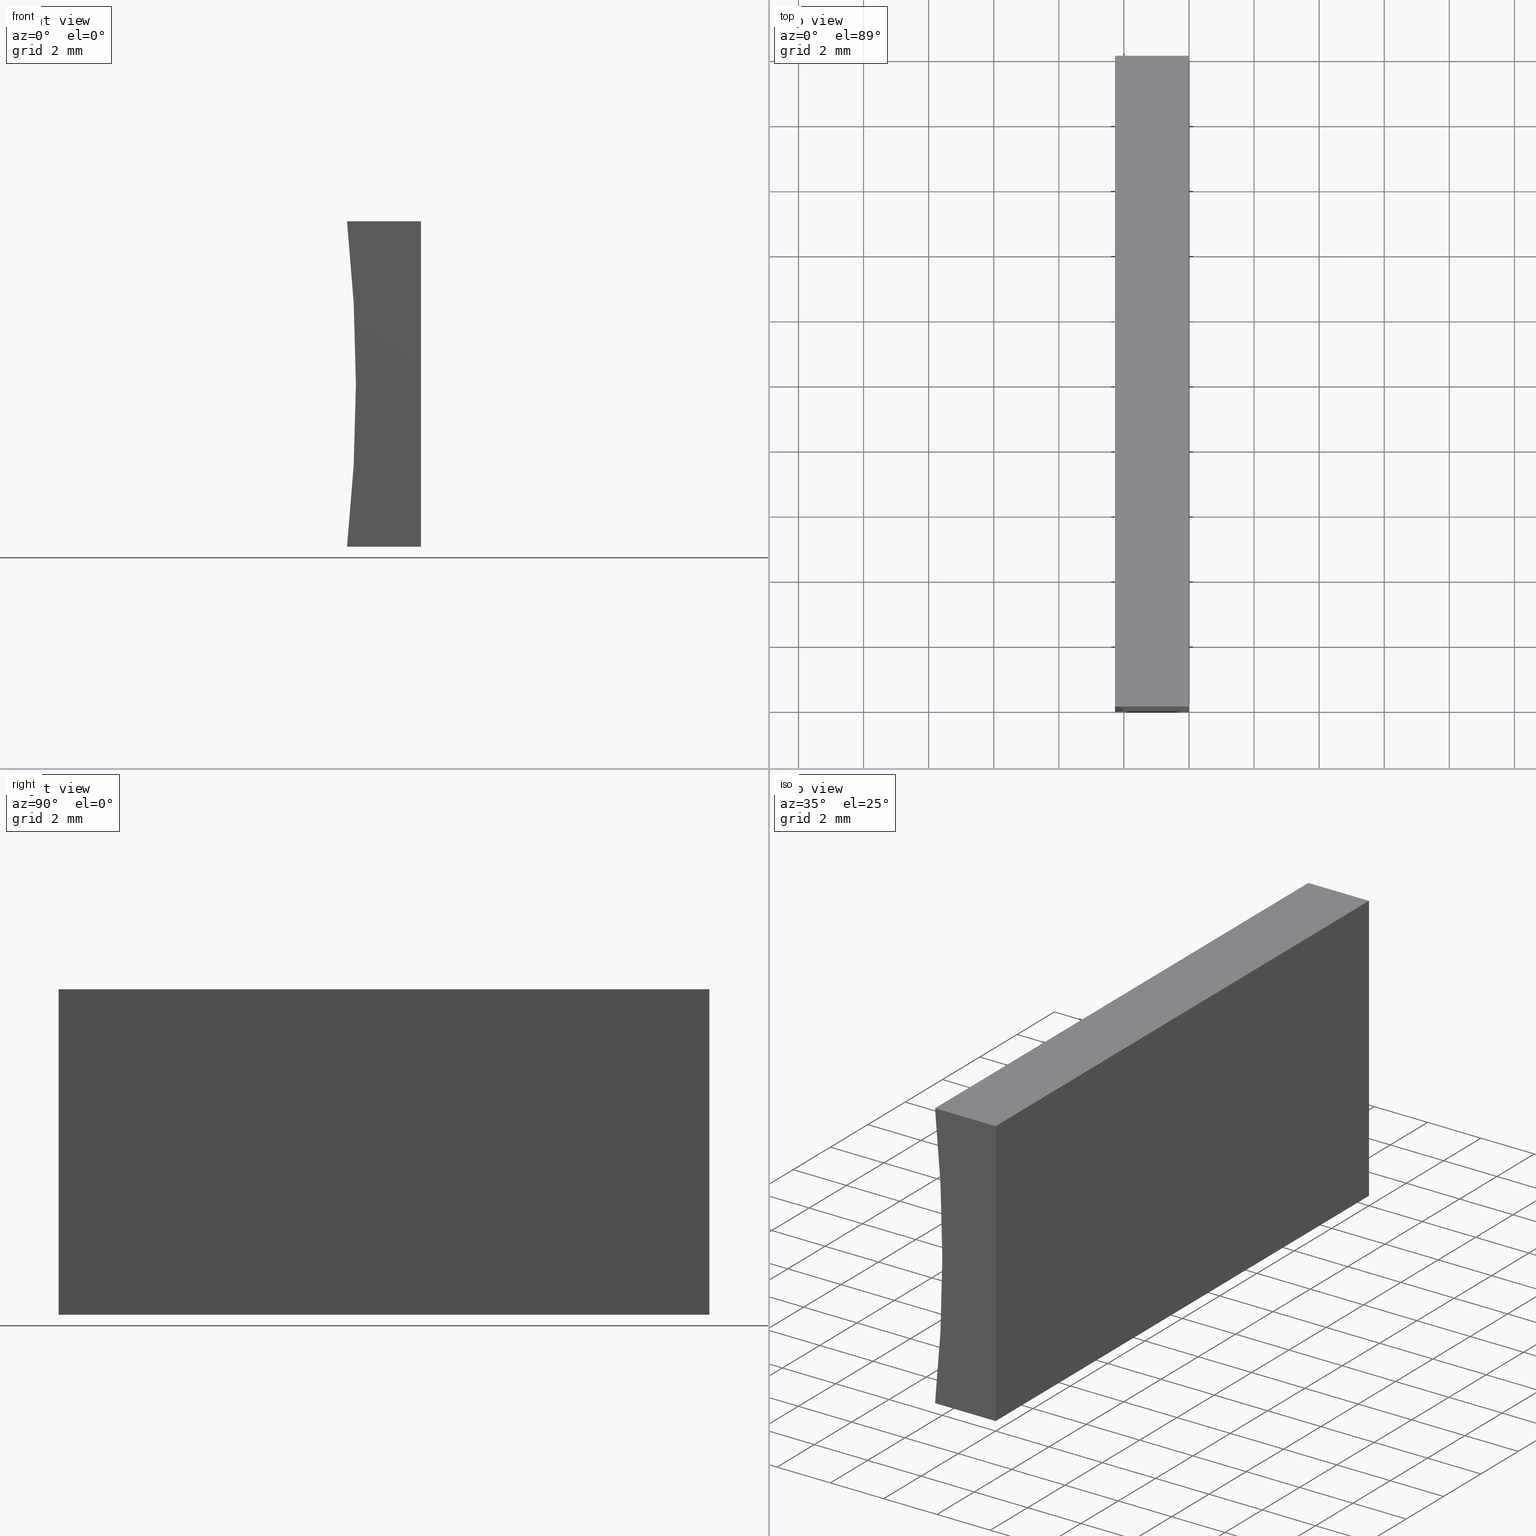
[diagram: canonical four-view strip — front | top / right | iso, engineering-drawing reading convention]
A machine part, canonical four-view strip (front | top / right | iso — engineering-drawing reading convention). The complete STEP part file that produces these views, byte-faithful:
ISO-10303-21;
HEADER;
FILE_DESCRIPTION (( 'STEP AP214' ),
    '1' );
FILE_NAME ('155481.STEP',
    '2019-07-03T07:50:52',
    ( 'user' ),
    ( '΢���й�' ),
    'SwSTEP 2.0',
    'SolidWorks 2016',
    '' );
FILE_SCHEMA (( 'AUTOMOTIVE_DESIGN' ));
ENDSEC;

DATA;
#1 = UNCERTAINTY_MEASURE_WITH_UNIT (LENGTH_MEASURE( 1.000000000000000100E-005 ), #62, 'distance_accuracy_value', 'NONE');
#2 = ADVANCED_FACE ( 'NONE', ( #198 ), #201, .F. ) ;
#3 = DIRECTION ( 'NONE',  ( 1.000000000000000000, -0.0000000000000000000, -7.630378568483683100E-016 ) ) ;
#4 = ORIENTED_EDGE ( 'NONE', *, *, #15, .F. ) ;
#5 = DIRECTION ( 'NONE',  ( 0.0000000000000000000, 1.000000000000000000, 0.0000000000000000000 ) ) ;
#6 = ORIENTED_EDGE ( 'NONE', *, *, #111, .T. ) ;
#7 = ORIENTED_EDGE ( 'NONE', *, *, #85, .T. ) ;
#8 = LINE ( 'NONE', #25, #126 ) ;
#9 = PLANE ( 'NONE',  #191 ) ;
#10 =( NAMED_UNIT ( * ) SI_UNIT ( $, .STERADIAN. ) SOLID_ANGLE_UNIT ( ) );
#11 = PRODUCT_DEFINITION_CONTEXT ( 'detailed design', #51, 'design' ) ;
#12 = EDGE_LOOP ( 'NONE', ( #178, #180, #164, #161 ) ) ;
#13 = EDGE_LOOP ( 'NONE', ( #75, #18, #4, #6 ) ) ;
#14 = ORIENTED_EDGE ( 'NONE', *, *, #199, .F. ) ;
#15 = EDGE_CURVE ( 'NONE', #24, #68, #47, .T. ) ;
#16 = LINE ( 'NONE', #120, #87 ) ;
#17 = DIRECTION ( 'NONE',  ( -1.000000000000000000, 0.0000000000000000000, -7.630378568483681200E-016 ) ) ;
#18 = ORIENTED_EDGE ( 'NONE', *, *, #148, .F. ) ;
#19 = DIRECTION ( 'NONE',  ( -7.630378568483682100E-016, 0.0000000000000000000, 1.000000000000000000 ) ) ;
#20 = SHAPE_DEFINITION_REPRESENTATION ( #182, #139 ) ;
#21 = DIRECTION ( 'NONE',  ( 0.0000000000000000000, 0.0000000000000000000, -1.000000000000000000 ) ) ;
#22 = CARTESIAN_POINT ( 'NONE',  ( -2.273443526304006900, 0.0000000000000000000, 10.00000000000000200 ) ) ;
#23 = VERTEX_POINT ( 'NONE', #82 ) ;
#24 = VERTEX_POINT ( 'NONE', #160 ) ;
#25 = CARTESIAN_POINT ( 'NONE',  ( 0.0000000000000000000, 0.0000000000000000000, 0.0000000000000000000 ) ) ;
#26 = LINE ( 'NONE', #165, #137 ) ;
#27 = PRODUCT_DEFINITION ( 'δ֪', '', #100, #11 ) ;
#28 = EDGE_LOOP ( 'NONE', ( #179, #153, #64, #110 ) ) ;
#29 = ORIENTED_EDGE ( 'NONE', *, *, #148, .T. ) ;
#30 = EDGE_CURVE ( 'NONE', #23, #24, #72, .T. ) ;
#31 = PRODUCT_CONTEXT ( 'NONE', #106, 'mechanical' ) ;
#32 = PLANE ( 'NONE',  #173 ) ;
#33 = EDGE_LOOP ( 'NONE', ( #7, #14, #171, #63 ) ) ;
#34 = STYLED_ITEM ( 'NONE', ( #115 ), #139 ) ;
#35 = VERTEX_POINT ( 'NONE', #117 ) ;
#36 = EDGE_CURVE ( 'NONE', #169, #23, #204, .T. ) ;
#37 = PRODUCT_RELATED_PRODUCT_CATEGORY ( 'part', '', ( #97 ) ) ;
#38 = DIRECTION ( 'NONE',  ( 1.000000000000000000, 0.0000000000000000000, 0.0000000000000000000 ) ) ;
#39 = AXIS2_PLACEMENT_3D ( 'NONE', #143, #88, #53 ) ;
#40 = APPLICATION_PROTOCOL_DEFINITION ( 'draft international standard', 'automotive_design', 1998, #51 ) ;
#41 = FACE_OUTER_BOUND ( 'NONE', #12, .T. ) ;
#42 = FACE_OUTER_BOUND ( 'NONE', #28, .T. ) ;
#43 = AXIS2_PLACEMENT_3D ( 'NONE', #155, #192, #46 ) ;
#44 = ORIENTED_EDGE ( 'NONE', *, *, #60, .F. ) ;
#45 = ORIENTED_EDGE ( 'NONE', *, *, #114, .F. ) ;
#46 = DIRECTION ( 'NONE',  ( 0.0000000000000000000, -0.0000000000000000000, 1.000000000000000000 ) ) ;
#47 = LINE ( 'NONE', #74, #202 ) ;
#48 = CIRCLE ( 'NONE', #39, 45.85000000000000100 ) ;
#49 = ORIENTED_EDGE ( 'NONE', *, *, #122, .T. ) ;
#50 = SURFACE_SIDE_STYLE ('',( #162 ) ) ;
#51 = APPLICATION_CONTEXT ( 'automotive_design' ) ;
#52 = AXIS2_PLACEMENT_3D ( 'NONE', #98, #167, #21 ) ;
#53 = DIRECTION ( 'NONE',  ( 0.0000000000000000000, 0.0000000000000000000, 1.000000000000000000 ) ) ;
#54 = CARTESIAN_POINT ( 'NONE',  ( 6.123233995736766300E-016, 20.00000000000000000, 10.00000000000000000 ) ) ;
#55 = DIRECTION ( 'NONE',  ( 1.000000000000000000, 0.0000000000000000000, 7.630378568483682100E-016 ) ) ;
#56 = CARTESIAN_POINT ( 'NONE',  ( 0.0000000000000000000, 0.0000000000000000000, 0.0000000000000000000 ) ) ;
#57 = STYLED_ITEM ( 'NONE', ( #71 ), #123 ) ;
#58 = FILL_AREA_STYLE_COLOUR ( '', #138 ) ;
#59 = UNCERTAINTY_MEASURE_WITH_UNIT (LENGTH_MEASURE( 1.000000000000000100E-005 ), #149, 'distance_accuracy_value', 'NONE');
#60 = EDGE_CURVE ( 'NONE', #68, #169, #48, .T. ) ;
#61 =( GEOMETRIC_REPRESENTATION_CONTEXT ( 3 ) GLOBAL_UNCERTAINTY_ASSIGNED_CONTEXT ( ( #1 ) ) GLOBAL_UNIT_ASSIGNED_CONTEXT ( ( #62, #128, #177 ) ) REPRESENTATION_CONTEXT ( 'NONE', 'WORKASPACE' ) );
#62 =( LENGTH_UNIT ( ) NAMED_UNIT ( * ) SI_UNIT ( .MILLI., .METRE. ) );
#63 = ORIENTED_EDGE ( 'NONE', *, *, #114, .T. ) ;
#64 = ORIENTED_EDGE ( 'NONE', *, *, #85, .F. ) ;
#65 = CARTESIAN_POINT ( 'NONE',  ( -2.273443526304006900, 20.00000000000000000, 10.00000000000000200 ) ) ;
#66 = VERTEX_POINT ( 'NONE', #56 ) ;
#67 = COLOUR_RGB ( '',1.000000000000000000, 1.000000000000000000, 1.000000000000000000 ) ;
#68 = VERTEX_POINT ( 'NONE', #95 ) ;
#69 = PRESENTATION_LAYER_ASSIGNMENT (  '', '', ( #57 ) ) ;
#70 = PLANE ( 'NONE',  #195 ) ;
#71 = PRESENTATION_STYLE_ASSIGNMENT (( #84 ) ) ;
#72 = LINE ( 'NONE', #147, #109 ) ;
#73 = FACE_OUTER_BOUND ( 'NONE', #33, .T. ) ;
#74 = CARTESIAN_POINT ( 'NONE',  ( 0.0000000000000000000, 20.00000000000000000, 0.0000000000000000000 ) ) ;
#75 = ORIENTED_EDGE ( 'NONE', *, *, #124, .T. ) ;
#76 =( GEOMETRIC_REPRESENTATION_CONTEXT ( 3 ) GLOBAL_UNCERTAINTY_ASSIGNED_CONTEXT ( ( #59 ) ) GLOBAL_UNIT_ASSIGNED_CONTEXT ( ( #149, #94, #10 ) ) REPRESENTATION_CONTEXT ( 'NONE', 'WORKASPACE' ) );
#77 = CARTESIAN_POINT ( 'NONE',  ( 0.0000000000000000000, 0.0000000000000000000, 0.0000000000000000000 ) ) ;
#78 = EDGE_LOOP ( 'NONE', ( #49, #45, #44, #29 ) ) ;
#79 = EDGE_CURVE ( 'NONE', #35, #66, #8, .T. ) ;
#80 = ADVANCED_FACE ( 'NONE', ( #41 ), #70, .F. ) ;
#81 = VERTEX_POINT ( 'NONE', #22 ) ;
#82 = CARTESIAN_POINT ( 'NONE',  ( 6.123233995736766300E-016, 20.00000000000000000, 10.00000000000000000 ) ) ;
#83 = DIRECTION ( 'NONE',  ( -6.123233995736766000E-017, -0.0000000000000000000, -1.000000000000000000 ) ) ;
#84 = SURFACE_STYLE_USAGE ( .BOTH. , #113 ) ;
#85 = EDGE_CURVE ( 'NONE', #81, #35, #16, .T. ) ;
#86 = FACE_OUTER_BOUND ( 'NONE', #13, .T. ) ;
#87 = VECTOR ( 'NONE', #3, 1000.000000000000000 ) ;
#88 = DIRECTION ( 'NONE',  ( -0.0000000000000000000, -1.000000000000000000, -0.0000000000000000000 ) ) ;
#89 = CARTESIAN_POINT ( 'NONE',  ( 0.0000000000000000000, 20.00000000000000000, 0.0000000000000000000 ) ) ;
#90 = ADVANCED_FACE ( 'NONE', ( #42 ), #144, .F. ) ;
#91 = MECHANICAL_DESIGN_GEOMETRIC_PRESENTATION_REPRESENTATION (  '', ( #34 ), #76 ) ;
#92 = VECTOR ( 'NONE', #121, 1000.000000000000000 ) ;
#93 = LINE ( 'NONE', #108, #99 ) ;
#94 =( NAMED_UNIT ( * ) PLANE_ANGLE_UNIT ( ) SI_UNIT ( $, .RADIAN. ) );
#95 = CARTESIAN_POINT ( 'NONE',  ( -2.273443526304014000, 20.00000000000000000, 8.673617379884035500E-016 ) ) ;
#96 = FACE_OUTER_BOUND ( 'NONE', #156, .T. ) ;
#97 = PRODUCT ( '155481', '155481', '', ( #31 ) ) ;
#98 = CARTESIAN_POINT ( 'NONE',  ( -47.85000000000000100, 20.00000000000000000, 5.000000000000004400 ) ) ;
#99 = VECTOR ( 'NONE', #152, 1000.000000000000000 ) ;
#100 = PRODUCT_DEFINITION_FORMATION_WITH_SPECIFIED_SOURCE ( '�κ�', '', #97, .NOT_KNOWN. ) ;
#101 = CARTESIAN_POINT ( 'NONE',  ( -2.273443526304014000, 0.0000000000000000000, 8.673617379884035500E-016 ) ) ;
#102 = CARTESIAN_POINT ( 'NONE',  ( 0.0000000000000000000, 20.00000000000000000, 0.0000000000000000000 ) ) ;
#103 = CIRCLE ( 'NONE', #188, 45.85000000000000100 ) ;
#104 = PLANE ( 'NONE',  #185 ) ;
#105 = DIRECTION ( 'NONE',  ( -1.000000000000000000, 0.0000000000000000000, 7.630378568483685100E-016 ) ) ;
#106 = APPLICATION_CONTEXT ( 'automotive_design' ) ;
#107 = DIRECTION ( 'NONE',  ( -7.630378568483685100E-016, 0.0000000000000000000, -1.000000000000000000 ) ) ;
#108 = CARTESIAN_POINT ( 'NONE',  ( -2.273443526304014000, 20.00000000000000000, 8.673617379884035500E-016 ) ) ;
#109 = VECTOR ( 'NONE', #83, 1000.000000000000000 ) ;
#110 = ORIENTED_EDGE ( 'NONE', *, *, #122, .F. ) ;
#111 = EDGE_CURVE ( 'NONE', #24, #66, #146, .T. ) ;
#112 = CARTESIAN_POINT ( 'NONE',  ( 0.0000000000000000000, 0.0000000000000000000, 0.0000000000000000000 ) ) ;
#113 = SURFACE_SIDE_STYLE ('',( #129 ) ) ;
#114 = EDGE_CURVE ( 'NONE', #169, #81, #26, .T. ) ;
#115 = PRESENTATION_STYLE_ASSIGNMENT (( #196 ) ) ;
#116 = CARTESIAN_POINT ( 'NONE',  ( -47.85000000000000100, 20.00000000000000000, 5.000000000000004400 ) ) ;
#117 = CARTESIAN_POINT ( 'NONE',  ( 6.123233995736766300E-016, 0.0000000000000000000, 10.00000000000000000 ) ) ;
#118 = DIRECTION ( 'NONE',  ( -0.0000000000000000000, -1.000000000000000000, -0.0000000000000000000 ) ) ;
#119 = FILL_AREA_STYLE ('',( #150 ) ) ;
#120 = CARTESIAN_POINT ( 'NONE',  ( 6.123233995736766300E-016, 0.0000000000000000000, 10.00000000000000000 ) ) ;
#121 = DIRECTION ( 'NONE',  ( -0.0000000000000000000, -1.000000000000000000, -0.0000000000000000000 ) ) ;
#122 = EDGE_CURVE ( 'NONE', #189, #81, #103, .T. ) ;
#123 = MANIFOLD_SOLID_BREP ( '͹̨-����1', #186 ) ;
#124 = EDGE_CURVE ( 'NONE', #66, #189, #172, .T. ) ;
#125 = DIRECTION ( 'NONE',  ( 0.0000000000000000000, -0.0000000000000000000, 1.000000000000000000 ) ) ;
#126 = VECTOR ( 'NONE', #140, 1000.000000000000000 ) ;
#127 = DIRECTION ( 'NONE',  ( 0.0000000000000000000, 0.0000000000000000000, 1.000000000000000000 ) ) ;
#128 =( NAMED_UNIT ( * ) PLANE_ANGLE_UNIT ( ) SI_UNIT ( $, .RADIAN. ) );
#129 = SURFACE_STYLE_FILL_AREA ( #190 ) ;
#130 = DIRECTION ( 'NONE',  ( 6.123233995736766000E-017, 0.0000000000000000000, 1.000000000000000000 ) ) ;
#131 = ADVANCED_FACE ( 'NONE', ( #73 ), #104, .F. ) ;
#132 = APPLICATION_PROTOCOL_DEFINITION ( 'draft international standard', 'automotive_design', 1998, #106 ) ;
#133 =( LENGTH_UNIT ( ) NAMED_UNIT ( * ) SI_UNIT ( .MILLI., .METRE. ) );
#134 = VECTOR ( 'NONE', #193, 1000.000000000000000 ) ;
#135 = CARTESIAN_POINT ( 'NONE',  ( 6.123233995736766300E-016, 20.00000000000000000, 10.00000000000000000 ) ) ;
#136 = CARTESIAN_POINT ( 'NONE',  ( 6.123233995736766300E-016, 20.00000000000000000, 10.00000000000000000 ) ) ;
#137 = VECTOR ( 'NONE', #118, 1000.000000000000000 ) ;
#138 = COLOUR_RGB ( '',1.000000000000000000, 1.000000000000000000, 1.000000000000000000 ) ;
#139 = ADVANCED_BREP_SHAPE_REPRESENTATION ( '155481', ( #123, #175 ), #176 ) ;
#140 = DIRECTION ( 'NONE',  ( -6.123233995736766000E-017, -0.0000000000000000000, -1.000000000000000000 ) ) ;
#141 =( NAMED_UNIT ( * ) SI_UNIT ( $, .STERADIAN. ) SOLID_ANGLE_UNIT ( ) );
#142 = LINE ( 'NONE', #136, #134 ) ;
#143 = CARTESIAN_POINT ( 'NONE',  ( -47.85000000000000100, 20.00000000000000000, 5.000000000000004400 ) ) ;
#144 = PLANE ( 'NONE',  #43 ) ;
#145 = VECTOR ( 'NONE', #17, 1000.000000000000000 ) ;
#146 = LINE ( 'NONE', #102, #92 ) ;
#147 = CARTESIAN_POINT ( 'NONE',  ( 0.0000000000000000000, 20.00000000000000000, 0.0000000000000000000 ) ) ;
#148 = EDGE_CURVE ( 'NONE', #68, #189, #93, .T. ) ;
#149 =( LENGTH_UNIT ( ) NAMED_UNIT ( * ) SI_UNIT ( .MILLI., .METRE. ) );
#150 = FILL_AREA_STYLE_COLOUR ( '', #67 ) ;
#151 = ORIENTED_EDGE ( 'NONE', *, *, #15, .T. ) ;
#152 = DIRECTION ( 'NONE',  ( -0.0000000000000000000, -1.000000000000000000, -0.0000000000000000000 ) ) ;
#153 = ORIENTED_EDGE ( 'NONE', *, *, #79, .F. ) ;
#154 = DIRECTION ( 'NONE',  ( 0.0000000000000000000, 0.0000000000000000000, 1.000000000000000000 ) ) ;
#155 = CARTESIAN_POINT ( 'NONE',  ( -47.85000000000000100, 0.0000000000000000000, 5.000000000000004400 ) ) ;
#156 = EDGE_LOOP ( 'NONE', ( #151, #174, #157, #159 ) ) ;
#157 = ORIENTED_EDGE ( 'NONE', *, *, #36, .T. ) ;
#158 = ADVANCED_FACE ( 'NONE', ( #96 ), #9, .T. ) ;
#159 = ORIENTED_EDGE ( 'NONE', *, *, #30, .T. ) ;
#160 = CARTESIAN_POINT ( 'NONE',  ( 0.0000000000000000000, 20.00000000000000000, 0.0000000000000000000 ) ) ;
#161 = ORIENTED_EDGE ( 'NONE', *, *, #199, .T. ) ;
#162 = SURFACE_STYLE_FILL_AREA ( #119 ) ;
#163 = PRESENTATION_LAYER_ASSIGNMENT (  '', '', ( #34 ) ) ;
#164 = ORIENTED_EDGE ( 'NONE', *, *, #30, .F. ) ;
#165 = CARTESIAN_POINT ( 'NONE',  ( -2.273443526304006900, 20.00000000000000000, 10.00000000000000200 ) ) ;
#166 = DIRECTION ( 'NONE',  ( -1.000000000000000000, 0.0000000000000000000, -7.630378568483681200E-016 ) ) ;
#167 = DIRECTION ( 'NONE',  ( -0.0000000000000000000, -1.000000000000000000, -0.0000000000000000000 ) ) ;
#168 = DIRECTION ( 'NONE',  ( -0.0000000000000000000, -1.000000000000000000, -0.0000000000000000000 ) ) ;
#169 = VERTEX_POINT ( 'NONE', #65 ) ;
#170 = VECTOR ( 'NONE', #203, 1000.000000000000000 ) ;
#171 = ORIENTED_EDGE ( 'NONE', *, *, #36, .F. ) ;
#172 = LINE ( 'NONE', #112, #145 ) ;
#173 = AXIS2_PLACEMENT_3D ( 'NONE', #183, #19, #55 ) ;
#174 = ORIENTED_EDGE ( 'NONE', *, *, #60, .T. ) ;
#175 = AXIS2_PLACEMENT_3D ( 'NONE', #77, #154, #38 ) ;
#176 =( GEOMETRIC_REPRESENTATION_CONTEXT ( 3 ) GLOBAL_UNCERTAINTY_ASSIGNED_CONTEXT ( ( #187 ) ) GLOBAL_UNIT_ASSIGNED_CONTEXT ( ( #133, #200, #141 ) ) REPRESENTATION_CONTEXT ( 'NONE', 'WORKASPACE' ) );
#177 =( NAMED_UNIT ( * ) SI_UNIT ( $, .STERADIAN. ) SOLID_ANGLE_UNIT ( ) );
#178 = ORIENTED_EDGE ( 'NONE', *, *, #79, .T. ) ;
#179 = ORIENTED_EDGE ( 'NONE', *, *, #124, .F. ) ;
#180 = ORIENTED_EDGE ( 'NONE', *, *, #111, .F. ) ;
#181 = MECHANICAL_DESIGN_GEOMETRIC_PRESENTATION_REPRESENTATION (  '', ( #57 ), #61 ) ;
#182 = PRODUCT_DEFINITION_SHAPE ( 'NONE', 'NONE',  #27 ) ;
#183 = CARTESIAN_POINT ( 'NONE',  ( 0.0000000000000000000, 20.00000000000000000, 0.0000000000000000000 ) ) ;
#184 = ADVANCED_FACE ( 'NONE', ( #86 ), #32, .F. ) ;
#185 = AXIS2_PLACEMENT_3D ( 'NONE', #135, #107, #105 ) ;
#186 = CLOSED_SHELL ( 'NONE', ( #184, #2, #131, #80, #158, #90 ) ) ;
#187 = UNCERTAINTY_MEASURE_WITH_UNIT (LENGTH_MEASURE( 1.000000000000000100E-005 ), #133, 'distance_accuracy_value', 'NONE');
#188 = AXIS2_PLACEMENT_3D ( 'NONE', #194, #168, #127 ) ;
#189 = VERTEX_POINT ( 'NONE', #101 ) ;
#190 = FILL_AREA_STYLE ('',( #58 ) ) ;
#191 = AXIS2_PLACEMENT_3D ( 'NONE', #116, #5, #125 ) ;
#192 = DIRECTION ( 'NONE',  ( 0.0000000000000000000, 1.000000000000000000, 0.0000000000000000000 ) ) ;
#193 = DIRECTION ( 'NONE',  ( -0.0000000000000000000, -1.000000000000000000, -0.0000000000000000000 ) ) ;
#194 = CARTESIAN_POINT ( 'NONE',  ( -47.85000000000000100, 0.0000000000000000000, 5.000000000000004400 ) ) ;
#195 = AXIS2_PLACEMENT_3D ( 'NONE', #89, #197, #130 ) ;
#196 = SURFACE_STYLE_USAGE ( .BOTH. , #50 ) ;
#197 = DIRECTION ( 'NONE',  ( -1.000000000000000000, 0.0000000000000000000, 6.123233995736766000E-017 ) ) ;
#198 = FACE_OUTER_BOUND ( 'NONE', #78, .T. ) ;
#199 = EDGE_CURVE ( 'NONE', #23, #35, #142, .T. ) ;
#200 =( NAMED_UNIT ( * ) PLANE_ANGLE_UNIT ( ) SI_UNIT ( $, .RADIAN. ) );
#201 = CYLINDRICAL_SURFACE ( 'NONE', #52, 45.85000000000000100 ) ;
#202 = VECTOR ( 'NONE', #166, 1000.000000000000000 ) ;
#203 = DIRECTION ( 'NONE',  ( 1.000000000000000000, -0.0000000000000000000, -7.630378568483683100E-016 ) ) ;
#204 = LINE ( 'NONE', #54, #170 ) ;
ENDSEC;
END-ISO-10303-21;
